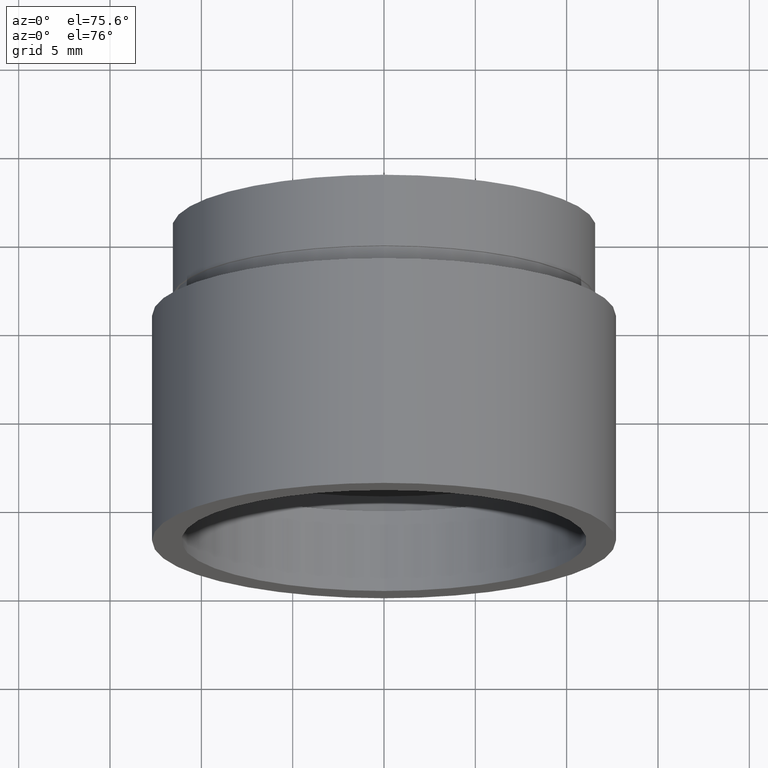
[diagram: clean part render]
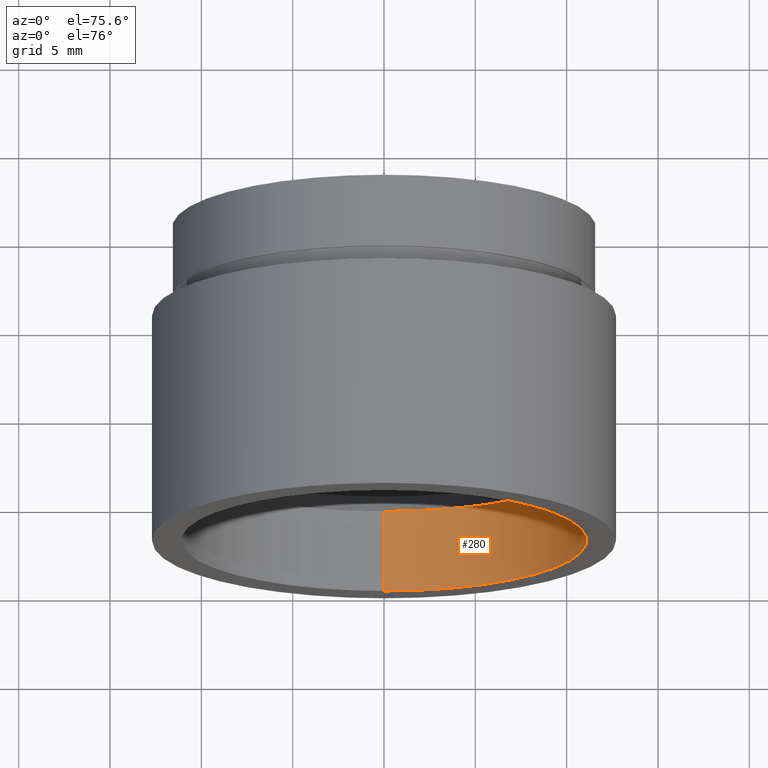
[diagram: same view with one face highlighted and labeled with its STEP entity id]
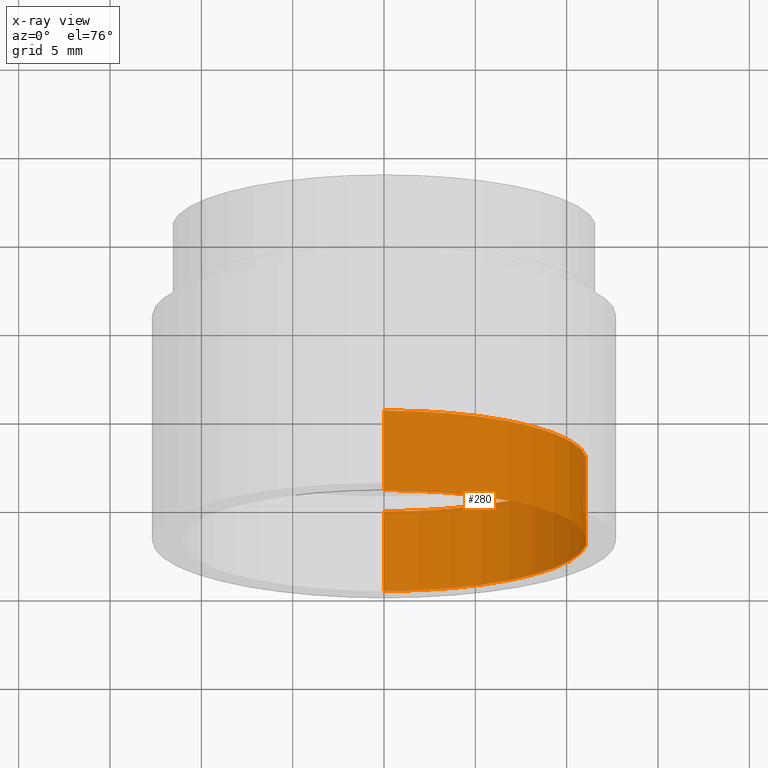
[diagram: x-ray of the same camera — body ghosted, the highlighted face saturated]
A machine part, auxiliary view. The second image highlights one B-rep face of the part: STEP entity #280.
The next image is the same camera in x-ray: the body ghosted, the highlighted face saturated — about 1% of this face is hidden behind the body in this view.
In plain terms, the highlighted cylindrical surface (partial cylindrical patch) has radius 11.1 mm, axis along (-0, 1, -0).
Its self-contained STEP definition (entity closure, byte-faithful):
#6 = CARTESIAN_POINT ( 'NONE',  ( 1.359357947053564100E-015, 4.499999999999976000, -11.10000000000001700 ) ) ;
#38 = CIRCLE ( 'NONE', #436, 11.10000000000001700 ) ;
#39 = CARTESIAN_POINT ( 'NONE',  ( 0.0000000000000000000, 161.3761669434274500, 0.0000000000000000000 ) ) ;
#54 = ORIENTED_EDGE ( 'NONE', *, *, #89, .F. ) ;
#59 = DIRECTION ( 'NONE',  ( 0.0000000000000000000, 0.0000000000000000000, 1.000000000000000000 ) ) ;
#68 = AXIS2_PLACEMENT_3D ( 'NONE', #39, #568, #352 ) ;
#89 = EDGE_CURVE ( 'NONE', #92, #425, #142, .T. ) ;
#92 = VERTEX_POINT ( 'NONE', #375 ) ;
#109 = ORIENTED_EDGE ( 'NONE', *, *, #473, .T. ) ;
#118 = CARTESIAN_POINT ( 'NONE',  ( 0.0000000000000000000, 4.499999999999976000, 0.0000000000000000000 ) ) ;
#135 = LINE ( 'NONE', #310, #332 ) ;
#136 = FACE_OUTER_BOUND ( 'NONE', #225, .T. ) ;
#142 = LINE ( 'NONE', #467, #254 ) ;
#152 = CARTESIAN_POINT ( 'NONE',  ( 0.0000000000000000000, 4.499999999999976000, 11.10000000000001700 ) ) ;
#169 = DIRECTION ( 'NONE',  ( -0.0000000000000000000, 1.000000000000000000, -0.0000000000000000000 ) ) ;
#188 = DIRECTION ( 'NONE',  ( -0.0000000000000000000, 1.000000000000000000, -0.0000000000000000000 ) ) ;
#217 = CYLINDRICAL_SURFACE ( 'NONE', #68, 11.10000000000001700 ) ;
#225 = EDGE_LOOP ( 'NONE', ( #54, #385, #109, #618 ) ) ;
#254 = VECTOR ( 'NONE', #188, 1000.000000000000000 ) ;
#280 = ADVANCED_FACE ( 'NONE', ( #136 ), #217, .F. ) ;
#282 = VERTEX_POINT ( 'NONE', #152 ) ;
#305 = DIRECTION ( 'NONE',  ( 0.0000000000000000000, 0.0000000000000000000, 1.000000000000000000 ) ) ;
#310 = CARTESIAN_POINT ( 'NONE',  ( 0.0000000000000000000, 161.3761669434274500, 11.10000000000001700 ) ) ;
#332 = VECTOR ( 'NONE', #400, 1000.000000000000000 ) ;
#352 = DIRECTION ( 'NONE',  ( 0.0000000000000000000, 0.0000000000000000000, 1.000000000000000000 ) ) ;
#375 = CARTESIAN_POINT ( 'NONE',  ( 1.359357947053564100E-015, -2.775557561562891400E-014, -11.10000000000001700 ) ) ;
#385 = ORIENTED_EDGE ( 'NONE', *, *, #502, .F. ) ;
#400 = DIRECTION ( 'NONE',  ( -0.0000000000000000000, 1.000000000000000000, -0.0000000000000000000 ) ) ;
#410 = EDGE_CURVE ( 'NONE', #282, #425, #458, .T. ) ;
#425 = VERTEX_POINT ( 'NONE', #6 ) ;
#436 = AXIS2_PLACEMENT_3D ( 'NONE', #447, #544, #59 ) ;
#447 = CARTESIAN_POINT ( 'NONE',  ( 0.0000000000000000000, -2.775557561562891400E-014, 0.0000000000000000000 ) ) ;
#458 = CIRCLE ( 'NONE', #509, 11.10000000000001700 ) ;
#467 = CARTESIAN_POINT ( 'NONE',  ( 1.359357947053564100E-015, 161.3761669434274500, -11.10000000000001700 ) ) ;
#473 = EDGE_CURVE ( 'NONE', #569, #282, #135, .T. ) ;
#502 = EDGE_CURVE ( 'NONE', #569, #92, #38, .T. ) ;
#509 = AXIS2_PLACEMENT_3D ( 'NONE', #118, #169, #305 ) ;
#533 = CARTESIAN_POINT ( 'NONE',  ( 0.0000000000000000000, -2.775557561562891400E-014, 11.10000000000001700 ) ) ;
#544 = DIRECTION ( 'NONE',  ( -0.0000000000000000000, 1.000000000000000000, -0.0000000000000000000 ) ) ;
#568 = DIRECTION ( 'NONE',  ( -0.0000000000000000000, 1.000000000000000000, -0.0000000000000000000 ) ) ;
#569 = VERTEX_POINT ( 'NONE', #533 ) ;
#618 = ORIENTED_EDGE ( 'NONE', *, *, #410, .T. ) ;